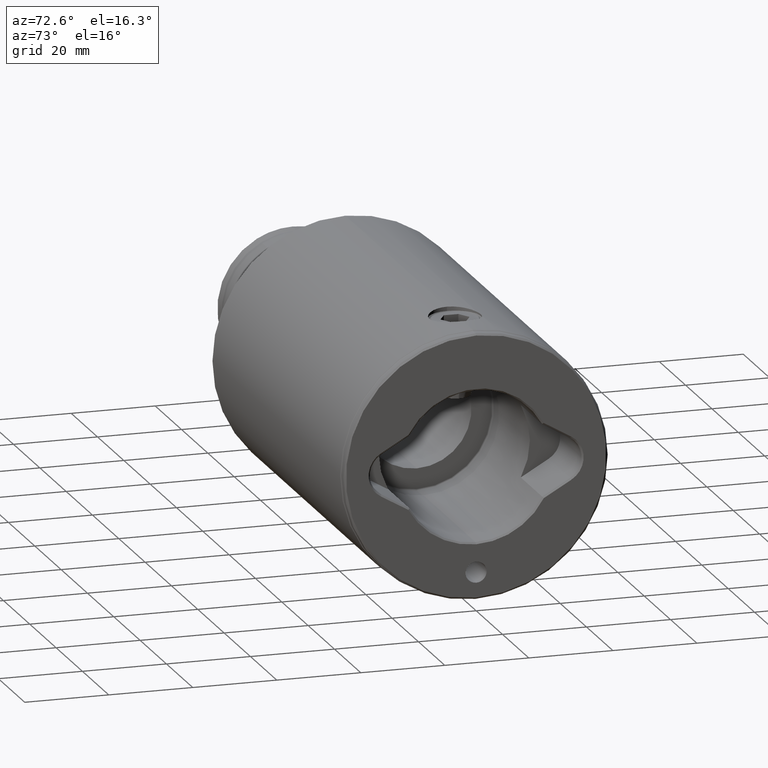
[diagram: clean part render]
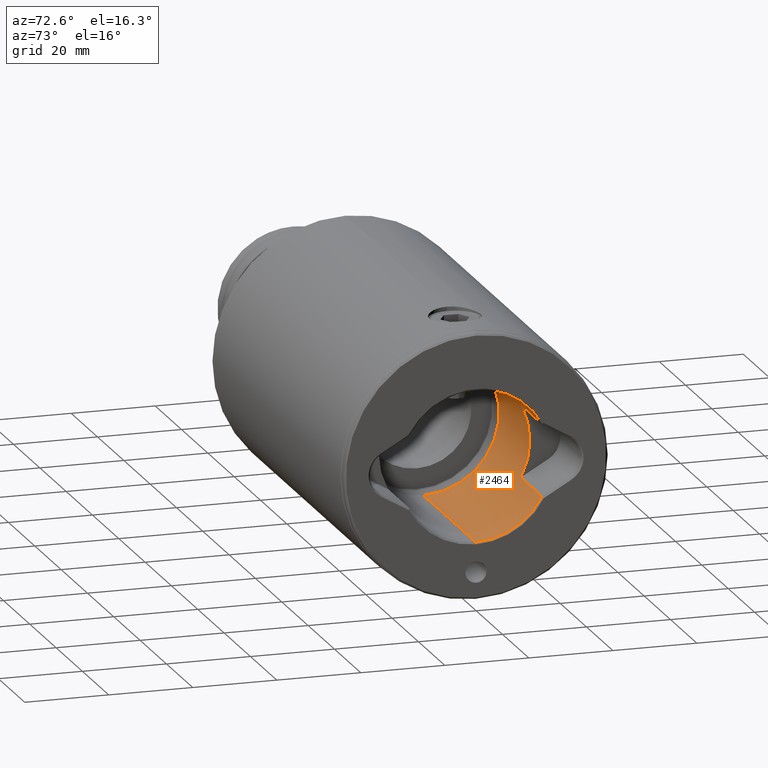
[diagram: same view with one face highlighted and labeled with its STEP entity id]
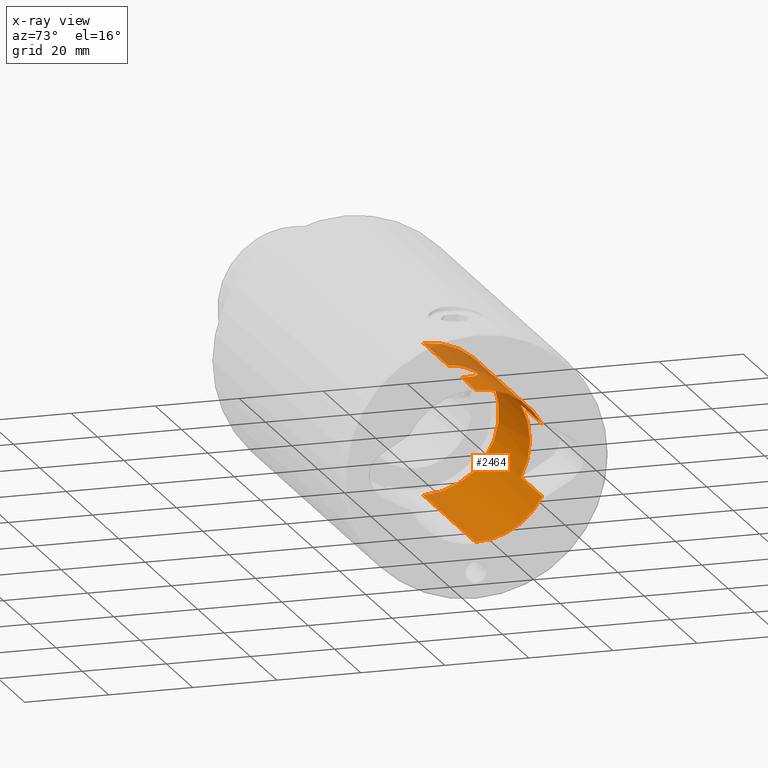
[diagram: x-ray of the same camera — body ghosted, the highlighted face saturated]
A machine part, auxiliary view. The second image highlights one B-rep face of the part: STEP entity #2464.
The next image is the same camera in x-ray: the body ghosted, the highlighted face saturated — about 9% of this face is hidden behind the body in this view.
In plain terms, the highlighted cylindrical surface (partial cylindrical patch) has radius 18 mm, axis along (1, 0, -0).
Its self-contained STEP definition (entity closure, byte-faithful):
#109 = DIRECTION ( 'NONE',  ( 0.0000000000000000000, 0.0000000000000000000, -1.000000000000000000 ) ) ;
#159 = CARTESIAN_POINT ( 'NONE',  ( 17.68263079096793400, 3.373654513180443200, 12.21100172397674100 ) ) ;
#166 = VERTEX_POINT ( 'NONE', #1733 ) ;
#211 = CARTESIAN_POINT ( 'NONE',  ( 17.40779370158115600, 4.581102523142847700, 18.31628720104578200 ) ) ;
#223 = EDGE_CURVE ( 'NONE', #3933, #2971, #725, .T. ) ;
#238 = CARTESIAN_POINT ( 'NONE',  ( 17.33801074618447300, 4.838508576983852700, 17.69663072837335300 ) ) ;
#261 = ORIENTED_EDGE ( 'NONE', *, *, #673, .T. ) ;
#262 = VERTEX_POINT ( 'NONE', #2903 ) ;
#350 = CARTESIAN_POINT ( 'NONE',  ( 8.593024545601725400, 15.81644489633135500, 0.4000000000000114600 ) ) ;
#410 = LINE ( 'NONE', #4235, #1866 ) ;
#519 = CARTESIAN_POINT ( 'NONE',  ( 17.30076003296533200, 4.968387612423032200, 14.88665761415906100 ) ) ;
#536 = CARTESIAN_POINT ( 'NONE',  ( 17.27220950132253200, 5.067096968140701200, 15.38105141352238200 ) ) ;
#538 = CARTESIAN_POINT ( 'NONE',  ( 8.593024545601725400, 15.81644489633135500, 45.00000000000000000 ) ) ;
#571 = CARTESIAN_POINT ( 'NONE',  ( 17.99044735554839700, 0.6716792941698883600, 10.98342975814724900 ) ) ;
#598 = EDGE_CURVE ( 'NONE', #1429, #1905, #1755, .T. ) ;
#611 = AXIS2_PLACEMENT_3D ( 'NONE', #1863, #4944, #2630 ) ;
#673 = EDGE_CURVE ( 'NONE', #166, #4157, #961, .T. ) ;
#701 = DIRECTION ( 'NONE',  ( -0.0000000000000000000, -0.0000000000000000000, 1.000000000000000000 ) ) ;
#725 = LINE ( 'NONE', #938, #2954 ) ;
#805 = DIRECTION ( 'NONE',  ( -0.0000000000000000000, -0.0000000000000000000, -1.000000000000000000 ) ) ;
#807 = AXIS2_PLACEMENT_3D ( 'NONE', #3909, #1640, #2013 ) ;
#831 = ORIENTED_EDGE ( 'NONE', *, *, #223, .T. ) ;
#915 = DIRECTION ( 'NONE',  ( 0.0000000000000000000, 0.0000000000000000000, -1.000000000000000000 ) ) ;
#938 = CARTESIAN_POINT ( 'NONE',  ( -18.00000000000000000, 0.0000000000000000000, 45.00000000000000000 ) ) ;
#949 = AXIS2_PLACEMENT_3D ( 'NONE', #3840, #805, #1169 ) ;
#961 = LINE ( 'NONE', #2541, #4708 ) ;
#970 = CARTESIAN_POINT ( 'NONE',  ( 17.31028795902498600, 4.935441874935635000, 17.37783604730498900 ) ) ;
#983 = LINE ( 'NONE', #4720, #4963 ) ;
#1169 = DIRECTION ( 'NONE',  ( 1.000000000000000000, 0.0000000000000000000, 0.0000000000000000000 ) ) ;
#1194 = AXIS2_PLACEMENT_3D ( 'NONE', #2848, #109, #1697 ) ;
#1219 = EDGE_CURVE ( 'NONE', #2971, #166, #3899, .T. ) ;
#1264 = EDGE_CURVE ( 'NONE', #2519, #262, #410, .T. ) ;
#1281 = CARTESIAN_POINT ( 'NONE',  ( 17.99999999999999600, 0.3388392975606113700, 10.95000000000000800 ) ) ;
#1353 = CARTESIAN_POINT ( 'NONE',  ( 17.53908618356960100, 4.051818885954036300, 12.93470729004540400 ) ) ;
#1369 = CARTESIAN_POINT ( 'NONE',  ( 18.00000000000000000, 2.204342783269225900E-015, 21.14999999999999500 ) ) ;
#1381 = CARTESIAN_POINT ( 'NONE',  ( 17.68345807745462000, 3.369451178304538900, 19.89289868212400600 ) ) ;
#1398 = CARTESIAN_POINT ( 'NONE',  ( 17.58707752596751900, 3.840910688323956100, 19.42171716019701900 ) ) ;
#1429 = VERTEX_POINT ( 'NONE', #1842 ) ;
#1430 = CARTESIAN_POINT ( 'NONE',  ( 17.98128529180005900, 0.8369774523298294500, 21.08364901014820000 ) ) ;
#1483 = ORIENTED_EDGE ( 'NONE', *, *, #3450, .T. ) ;
#1507 = FACE_OUTER_BOUND ( 'NONE', #2105, .T. ) ;
#1568 = CARTESIAN_POINT ( 'NONE',  ( 18.00000000000000000, 2.204342783269225900E-015, 21.14999999999999500 ) ) ;
#1610 = VERTEX_POINT ( 'NONE', #1568 ) ;
#1640 = DIRECTION ( 'NONE',  ( -0.0000000000000000000, -0.0000000000000000000, -1.000000000000000000 ) ) ;
#1687 = CARTESIAN_POINT ( 'NONE',  ( 17.81921347916677700, 2.560091004293864300, 11.62657564635202500 ) ) ;
#1697 = DIRECTION ( 'NONE',  ( -1.000000000000000000, 0.0000000000000000000, 0.0000000000000000000 ) ) ;
#1733 = CARTESIAN_POINT ( 'NONE',  ( -8.593024545601736000, 15.81644489633134800, 0.4000000000000114600 ) ) ;
#1739 = CARTESIAN_POINT ( 'NONE',  ( 17.35579387499611000, 4.772921141648612100, 14.24534904200195000 ) ) ;
#1755 = LINE ( 'NONE', #538, #3014 ) ;
#1766 = CARTESIAN_POINT ( 'NONE',  ( 17.98834907492941000, 0.6688238067563655500, 21.10875025130480200 ) ) ;
#1842 = CARTESIAN_POINT ( 'NONE',  ( 8.593024545601732500, 15.81644489633135500, 16.60000000000000100 ) ) ;
#1855 = EDGE_CURVE ( 'NONE', #1429, #4157, #2289, .T. ) ;
#1863 = CARTESIAN_POINT ( 'NONE',  ( 0.0000000000000000000, 0.0000000000000000000, 40.00000000000000000 ) ) ;
#1866 = VECTOR ( 'NONE', #2672, 1000.000000000000000 ) ;
#1905 = VERTEX_POINT ( 'NONE', #350 ) ;
#1950 = CIRCLE ( 'NONE', #611, 18.00000000000000000 ) ;
#2013 = DIRECTION ( 'NONE',  ( 1.000000000000000000, -1.776356839400250500E-015, 0.0000000000000000000 ) ) ;
#2093 = CARTESIAN_POINT ( 'NONE',  ( 17.26234311941163200, 5.100148042134981600, 16.38231951396367200 ) ) ;
#2105 = EDGE_LOOP ( 'NONE', ( #3364, #4910, #831, #3032, #261, #2222, #3831, #3341, #4835, #1483 ) ) ;
#2126 = CARTESIAN_POINT ( 'NONE',  ( -18.00000000000000000, 0.0000000000000000000, 0.3999999999999975800 ) ) ;
#2169 = CARTESIAN_POINT ( 'NONE',  ( 18.00000000000000000, 0.1669674265801975900, 21.14999999999999500 ) ) ;
#2198 = DIRECTION ( 'NONE',  ( -1.000000000000000000, 8.881784197001252300E-016, 0.0000000000000000000 ) ) ;
#2222 = ORIENTED_EDGE ( 'NONE', *, *, #1855, .F. ) ;
#2289 = CIRCLE ( 'NONE', #4933, 18.00000000000000000 ) ;
#2456 = CARTESIAN_POINT ( 'NONE',  ( 17.34014442292773900, 4.829282020156850500, 14.40195655172721500 ) ) ;
#2464 = ADVANCED_FACE ( 'NONE', ( #1507 ), #4439, .F. ) ;
#2469 = VERTEX_POINT ( 'NONE', #2480 ) ;
#2480 = CARTESIAN_POINT ( 'NONE',  ( 18.00000000000000000, 2.204364238465235000E-015, 40.00000000000000000 ) ) ;
#2519 = VERTEX_POINT ( 'NONE', #4812 ) ;
#2541 = CARTESIAN_POINT ( 'NONE',  ( -8.593024545601736000, 15.81644489633134800, 45.00000000000000000 ) ) ;
#2581 = CARTESIAN_POINT ( 'NONE',  ( 17.92700766216510300, 1.648672088146761400, 20.88764316696119400 ) ) ;
#2596 = DIRECTION ( 'NONE',  ( -0.0000000000000000000, -0.0000000000000000000, 1.000000000000000000 ) ) ;
#2630 = DIRECTION ( 'NONE',  ( -1.000000000000000000, 0.0000000000000000000, 0.0000000000000000000 ) ) ;
#2672 = DIRECTION ( 'NONE',  ( 0.0000000000000000000, 0.0000000000000000000, -1.000000000000000000 ) ) ;
#2841 = CARTESIAN_POINT ( 'NONE',  ( 17.31264863366540000, 4.926943345061486600, 14.72212903030474300 ) ) ;
#2848 = CARTESIAN_POINT ( 'NONE',  ( 0.0000000000000000000, 0.0000000000000000000, 45.00000000000000000 ) ) ;
#2903 = CARTESIAN_POINT ( 'NONE',  ( 18.00000000000000000, 2.204364238465235000E-015, 0.3999999999999975800 ) ) ;
#2911 = CARTESIAN_POINT ( 'NONE',  ( 17.73082782238714100, 3.113781776239987800, 20.10270227548307900 ) ) ;
#2944 = CARTESIAN_POINT ( 'NONE',  ( 17.81884038093112500, 2.562580671136154300, 20.47190151266051200 ) ) ;
#2954 = VECTOR ( 'NONE', #3587, 1000.000000000000000 ) ;
#2971 = VERTEX_POINT ( 'NONE', #2126 ) ;
#3014 = VECTOR ( 'NONE', #915, 1000.000000000000000 ) ;
#3032 = ORIENTED_EDGE ( 'NONE', *, *, #1219, .T. ) ;
#3244 = CARTESIAN_POINT ( 'NONE',  ( 17.26243089153804900, 5.099850952612671400, 15.71315200432542600 ) ) ;
#3278 = CARTESIAN_POINT ( 'NONE',  ( 17.92682137901592700, 1.650867325673279300, 11.21303207262179000 ) ) ;
#3316 = CARTESIAN_POINT ( 'NONE',  ( 0.0000000000000000000, 0.0000000000000000000, 16.60000000000000100 ) ) ;
#3341 = ORIENTED_EDGE ( 'NONE', *, *, #3783, .T. ) ;
#3359 = EDGE_CURVE ( 'NONE', #2469, #1610, #983, .T. ) ;
#3364 = ORIENTED_EDGE ( 'NONE', *, *, #3359, .F. ) ;
#3426 = CARTESIAN_POINT ( 'NONE',  ( -8.593024545601736000, 15.81644489633135500, 16.60000000000000100 ) ) ;
#3450 = EDGE_CURVE ( 'NONE', #2519, #1610, #4425, .T. ) ;
#3533 = DIRECTION ( 'NONE',  ( 0.0000000000000000000, 0.0000000000000000000, -1.000000000000000000 ) ) ;
#3580 = CARTESIAN_POINT ( 'NONE',  ( 17.95408580892885200, 1.325953201509897400, 11.11409732700794400 ) ) ;
#3587 = DIRECTION ( 'NONE',  ( 0.0000000000000000000, 0.0000000000000000000, -1.000000000000000000 ) ) ;
#3621 = CARTESIAN_POINT ( 'NONE',  ( -18.00000000000000000, 0.0000000000000000000, 40.00000000000000000 ) ) ;
#3645 = CARTESIAN_POINT ( 'NONE',  ( 17.58695266685271000, 3.841363346244708800, 12.67903868611044500 ) ) ;
#3717 = CARTESIAN_POINT ( 'NONE',  ( 17.99767731697609100, 0.3341241086812748500, 21.14182093848148000 ) ) ;
#3783 = EDGE_CURVE ( 'NONE', #1905, #262, #4838, .T. ) ;
#3831 = ORIENTED_EDGE ( 'NONE', *, *, #598, .T. ) ;
#3840 = CARTESIAN_POINT ( 'NONE',  ( 0.0000000000000000000, 0.0000000000000000000, 0.3999999999999975800 ) ) ;
#3899 = CIRCLE ( 'NONE', #807, 18.00000000000000000 ) ;
#3909 = CARTESIAN_POINT ( 'NONE',  ( 0.0000000000000000000, 0.0000000000000000000, 0.3999999999999975800 ) ) ;
#3933 = VERTEX_POINT ( 'NONE', #3621 ) ;
#3955 = CARTESIAN_POINT ( 'NONE',  ( 17.85926761126977900, 2.267784837935131300, 11.46974088218880000 ) ) ;
#3998 = EDGE_CURVE ( 'NONE', #2469, #3933, #1950, .T. ) ;
#4024 = CARTESIAN_POINT ( 'NONE',  ( 17.44877358553211600, 4.424599507310525800, 13.49164033936244100 ) ) ;
#4079 = CARTESIAN_POINT ( 'NONE',  ( 17.53861514782138500, 4.053754812824190700, 19.16236234758116200 ) ) ;
#4157 = VERTEX_POINT ( 'NONE', #3426 ) ;
#4235 = CARTESIAN_POINT ( 'NONE',  ( 18.00000000000000000, 2.204364238465235000E-015, 45.00000000000000000 ) ) ;
#4355 = CARTESIAN_POINT ( 'NONE',  ( 17.73094234758779600, 3.113216734007285600, 11.99677529246041100 ) ) ;
#4393 = CARTESIAN_POINT ( 'NONE',  ( 17.40760265911061200, 4.581789899757502800, 13.78563109611559900 ) ) ;
#4425 = B_SPLINE_CURVE_WITH_KNOTS ( 'NONE', 3,
 ( #4772, #1281, #571, #3580, #3278, #3955, #1687, #4355, #159, #3645, #1353, #4024, #4393, #1739, #2456, #2841, #519, #536, #3244, #2093, #4848, #970, #238, #211, #4821, #4079, #1398, #1381, #2911, #2944, #4437, #2581, #4875, #1430, #1766, #3717, #2169, #1369 ),
 .UNSPECIFIED., .F., .F.,
 ( 4, 2, 2, 2, 2, 2, 2, 2, 2, 2, 2, 2, 2, 2, 2, 2, 2, 2, 4 ),
 ( 1.373428593849561300E-018, 0.001001713328729562900, 0.002003426657459124500, 0.003005139986188686300, 0.004006853314918248100, 0.005008566643647809400, 0.006010279972377371600, 0.006511136636742152800, 0.007011993301106934700, 0.008013706629836496100, 0.009015419958566058300, 0.01001713328729561900, 0.01101884661602518100, 0.01202055994475474300, 0.01302227327348430400, 0.01402398660221386600, 0.01502569993094342500, 0.01552655659530820600, 0.01602741325967298500 ),
 .UNSPECIFIED. ) ;
#4437 = CARTESIAN_POINT ( 'NONE',  ( 17.85975852360266100, 2.263790814576879000, 20.63215693892275100 ) ) ;
#4439 = CYLINDRICAL_SURFACE ( 'NONE', #1194, 18.00000000000000000 ) ;
#4708 = VECTOR ( 'NONE', #701, 1000.000000000000000 ) ;
#4720 = CARTESIAN_POINT ( 'NONE',  ( 18.00000000000000000, 2.204364238465235000E-015, 45.00000000000000000 ) ) ;
#4772 = CARTESIAN_POINT ( 'NONE',  ( 18.00000000000000000, -9.663547106777289000E-016, 10.95000000000000600 ) ) ;
#4812 = CARTESIAN_POINT ( 'NONE',  ( 18.00000000000000000, -9.663547106777289000E-016, 10.95000000000000600 ) ) ;
#4821 = CARTESIAN_POINT ( 'NONE',  ( 17.44933250627815000, 4.422300811933753900, 18.61183196051307600 ) ) ;
#4835 = ORIENTED_EDGE ( 'NONE', *, *, #1264, .F. ) ;
#4838 = CIRCLE ( 'NONE', #949, 18.00000000000000000 ) ;
#4848 = CARTESIAN_POINT ( 'NONE',  ( 17.27237331285531900, 5.066534897402466000, 16.72227911078189100 ) ) ;
#4875 = CARTESIAN_POINT ( 'NONE',  ( 17.95378096696725500, 1.330547629143495900, 20.98480065036864100 ) ) ;
#4910 = ORIENTED_EDGE ( 'NONE', *, *, #3998, .T. ) ;
#4933 = AXIS2_PLACEMENT_3D ( 'NONE', #3316, #2596, #2198 ) ;
#4944 = DIRECTION ( 'NONE',  ( -0.0000000000000000000, -0.0000000000000000000, 1.000000000000000000 ) ) ;
#4963 = VECTOR ( 'NONE', #3533, 1000.000000000000000 ) ;